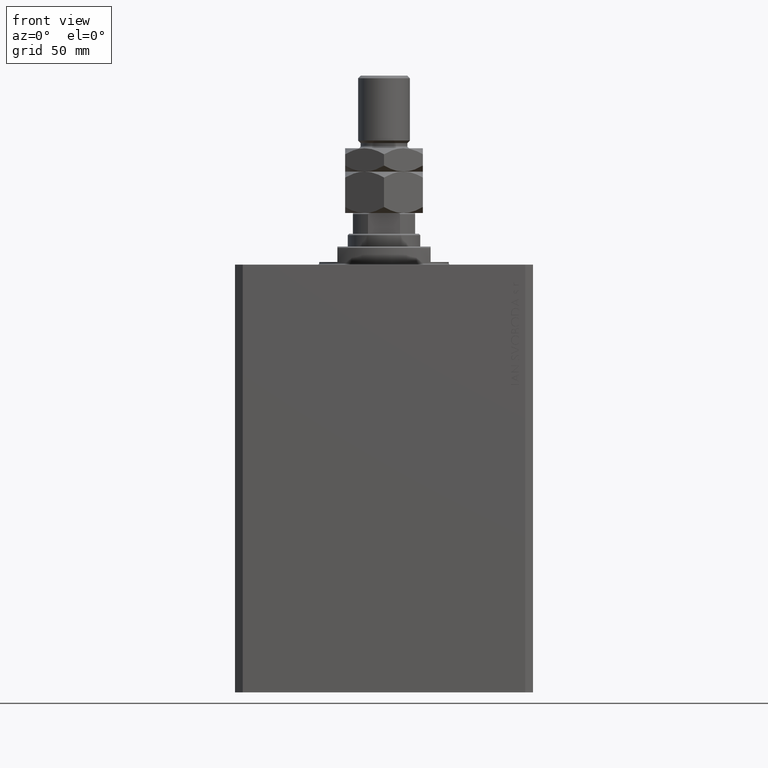
[diagram: clean part render]
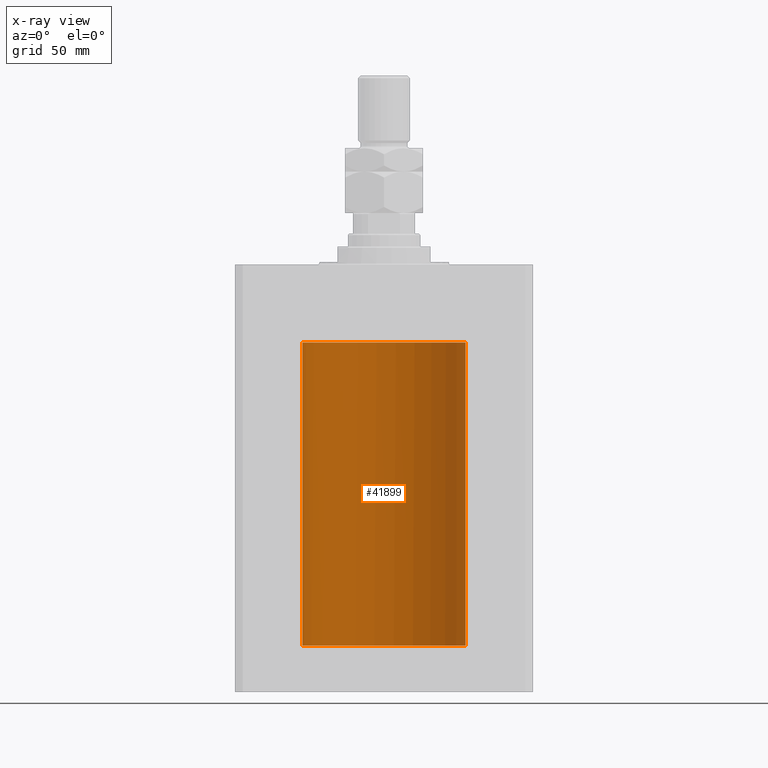
[diagram: x-ray — body ghosted, one internal face saturated and labeled with its STEP entity id]
A machine part, front view, then the same camera in x-ray: the body is ghosted and one INTERNAL B-rep face — a face not visible from any outside direction — is saturated and labeled: STEP entity #41899.
In plain terms, the highlighted cylindrical surface (partial cylindrical patch) has radius 31.5 mm, axis along (0, 0, 1).
Its self-contained STEP definition (entity closure, byte-faithful):
#1150 = VERTEX_POINT ( 'NONE', #13992 ) ;
#2262 = CIRCLE ( 'NONE', #33038, 31.50000000000000000 ) ;
#2282 = CARTESIAN_POINT ( 'NONE',  ( -31.49006417643538569, 0.8041893641746242771, -30.83852447520479956 ) ) ;
#2848 = CARTESIAN_POINT ( 'NONE',  ( 31.50000000000000000, -8.369814204394935255E-24, -134.0000000000000000 ) ) ;
#3234 = VERTEX_POINT ( 'NONE', #27598 ) ;
#3560 = DIRECTION ( 'NONE',  ( 1.000000000000000000, 0.000000000000000000, 0.000000000000000000 ) ) ;
#3732 = AXIS2_PLACEMENT_3D ( 'NONE', #41002, #15313, #7172 ) ;
#3853 = DIRECTION ( 'NONE',  ( -0.000000000000000000, -0.000000000000000000, 1.000000000000000000 ) ) ;
#4620 = CARTESIAN_POINT ( 'NONE',  ( 31.43989559156923264, 1.947546710638696110, -136.5243738522823378 ) ) ;
#5175 = CARTESIAN_POINT ( 'NONE',  ( 31.45226167581968113, 1.735077252816690230, -134.9967648169954657 ) ) ;
#5374 = DIRECTION ( 'NONE',  ( -0.000000000000000000, -0.000000000000000000, 1.000000000000000000 ) ) ;
#6868 = CIRCLE ( 'NONE', #3732, 31.50000000000000000 ) ;
#6970 = CARTESIAN_POINT ( 'NONE',  ( -31.50000000000000000, 0.1657740143102494623, -31.00000000000000711 ) ) ;
#7172 = DIRECTION ( 'NONE',  ( 1.000000000000000000, 0.000000000000000000, 0.000000000000000000 ) ) ;
#7215 = CARTESIAN_POINT ( 'NONE',  ( -31.49869211956624682, 0.3285775292346077570, -30.97970213844783416 ) ) ;
#7261 = DIRECTION ( 'NONE',  ( -0.000000000000000000, -0.000000000000000000, 1.000000000000000000 ) ) ;
#7964 = ORIENTED_EDGE ( 'NONE', *, *, #15089, .T. ) ;
#8482 = VERTEX_POINT ( 'NONE', #23171 ) ;
#9104 = CARTESIAN_POINT ( 'NONE',  ( 31.46404119587053927, 1.507594711990238201, -134.6791728524376310 ) ) ;
#9343 = CARTESIAN_POINT ( 'NONE',  ( 31.43644381923627051, 2.000000000000389910, -136.0000000000000000 ) ) ;
#9693 = CARTESIAN_POINT ( 'NONE',  ( -31.46581137650060356, 1.472225318046969322, -30.36367113479343161 ) ) ;
#9721 = CARTESIAN_POINT ( 'NONE',  ( -31.50000000000000000, 3.857542963677526976E-15, -30.99999999999999645 ) ) ;
#10507 = CARTESIAN_POINT ( 'NONE',  ( 31.47243113015943550, 1.320912165297383201, -134.4924797776056948 ) ) ;
#10820 = ORIENTED_EDGE ( 'NONE', *, *, #21424, .T. ) ;
#12004 = AXIS2_PLACEMENT_3D ( 'NONE', #25774, #7261, #3560 ) ;
#12571 = CARTESIAN_POINT ( 'NONE',  ( 31.50000000000000711, 0.1305169792915967519, -133.9999999999999432 ) ) ;
#12600 = VERTEX_POINT ( 'NONE', #41295 ) ;
#13992 = CARTESIAN_POINT ( 'NONE',  ( 31.50000000000000000, 0.000000000000000000, -30.10000000000000142 ) ) ;
#14514 = CARTESIAN_POINT ( 'NONE',  ( 31.48773468680478160, 0.8872681233992232297, -137.7972062396702313 ) ) ;
#15089 = EDGE_CURVE ( 'NONE', #3234, #12600, #17319, .T. ) ;
#15198 = ORIENTED_EDGE ( 'NONE', *, *, #32299, .T. ) ;
#15227 = ORIENTED_EDGE ( 'NONE', *, *, #20168, .F. ) ;
#15313 = DIRECTION ( 'NONE',  ( 0.000000000000000000, 0.000000000000000000, 1.000000000000000000 ) ) ;
#15709 = DIRECTION ( 'NONE',  ( 0.000000000000000000, 0.000000000000000000, 1.000000000000000000 ) ) ;
#15721 = CARTESIAN_POINT ( 'NONE',  ( 31.45161214644910075, 1.748160858796773631, -137.0059024499661291 ) ) ;
#16419 = VECTOR ( 'NONE', #5374, 1000.000000000000000 ) ;
#17084 = VECTOR ( 'NONE', #17234, 1000.000000000000000 ) ;
#17104 = CARTESIAN_POINT ( 'NONE',  ( -31.46054086632929625, 1.578847945691098875, -30.23891272917829909 ) ) ;
#17234 = DIRECTION ( 'NONE',  ( -0.000000000000000000, -0.000000000000000000, 1.000000000000000000 ) ) ;
#17319 = B_SPLINE_CURVE_WITH_KNOTS ( 'NONE', 3,
 ( #21919, #36972, #18204, #33265, #48334, #14514, #44629, #37951, #38442, #37469, #15721, #4620, #41649, #45840 ),
 .UNSPECIFIED., .F., .F.,
 ( 4, 2, 2, 2, 2, 2, 4 ),
 ( 5.096331421419789159E-18, 0.0003909946087814292703, 0.0007819892175628534448, 0.001172983826344277999, 0.001563978435125702553, 0.002345967652688551661, 0.003127956870251400769 ),
 .UNSPECIFIED. ) ;
#18204 = CARTESIAN_POINT ( 'NONE',  ( 31.49916827061299784, 0.2622045237009093532, -137.9870193222189130 ) ) ;
#18210 = CARTESIAN_POINT ( 'NONE',  ( -31.50000000000000000, 3.857637417314162689E-15, -147.1000000000000227 ) ) ;
#19585 = VECTOR ( 'NONE', #3853, 1000.000000000000000 ) ;
#19991 = CARTESIAN_POINT ( 'NONE',  ( 31.44280827872263018, 1.897980201673368450, -135.3559202626804563 ) ) ;
#20168 = EDGE_CURVE ( 'NONE', #48243, #8482, #6868, .T. ) ;
#20468 = CARTESIAN_POINT ( 'NONE',  ( 31.45991621267056004, 1.590260824275577356, -134.7801457396745093 ) ) ;
#20712 = CARTESIAN_POINT ( 'NONE',  ( 31.47656038302703507, 1.219789706799898843, -134.4096921557544988 ) ) ;
#20923 = ORIENTED_EDGE ( 'NONE', *, *, #25114, .F. ) ;
#21424 = EDGE_CURVE ( 'NONE', #37097, #31746, #26448, .T. ) ;
#21919 = CARTESIAN_POINT ( 'NONE',  ( 31.50000000000000000, -5.244345426788806144E-15, -138.0000000000000000 ) ) ;
#22037 = CARTESIAN_POINT ( 'NONE',  ( -31.50000000000000000, 3.857542963677526976E-15, -30.99999999999999645 ) ) ;
#23171 = CARTESIAN_POINT ( 'NONE',  ( -31.50000000000000000, 3.857637417314162689E-15, -147.1000000000000227 ) ) ;
#23935 = CARTESIAN_POINT ( 'NONE',  ( 31.49916210907646175, 0.2630769646869162703, -134.0130766648357508 ) ) ;
#24407 = CARTESIAN_POINT ( 'NONE',  ( 31.50000000000000000, -8.369814204394935255E-24, -134.0000000000000000 ) ) ;
#24508 = CARTESIAN_POINT ( 'NONE',  ( -31.45568311132346295, 1.670329308849017202, -30.10000000000000142 ) ) ;
#24887 = LINE ( 'NONE', #18210, #17084 ) ;
#25114 = EDGE_CURVE ( 'NONE', #8482, #31746, #24887, .T. ) ;
#25521 = VERTEX_POINT ( 'NONE', #2848 ) ;
#25569 = CARTESIAN_POINT ( 'NONE',  ( 31.48776132734998967, 0.8863252928784803863, -134.2023288708493283 ) ) ;
#25774 = CARTESIAN_POINT ( 'NONE',  ( 0.000000000000000000, 0.000000000000000000, -147.1000000000000227 ) ) ;
#25822 = B_SPLINE_CURVE_WITH_KNOTS ( 'NONE', 3,
 ( #9343, #40633, #42934, #35270, #19991, #46634, #5175, #20468, #9104, #10507, #20712, #29022, #25569, #36428, #35037, #23935, #12571, #24407 ),
 .UNSPECIFIED., .F., .F.,
 ( 4, 2, 2, 2, 2, 2, 2, 2, 4 ),
 ( 0.003127956870251400769, 0.003518772842989208692, 0.003909588815727015748, 0.004300404788464823672, 0.004691220761202631595, 0.005082036733940439518, 0.005472852706678247442, 0.005863668679416054498, 0.006254484652153862421 ),
 .UNSPECIFIED. ) ;
#26196 = EDGE_LOOP ( 'NONE', ( #20923, #15227, #44395, #7964, #26998, #15198, #36388, #10820 ) ) ;
#26321 = LINE ( 'NONE', #34688, #19585 ) ;
#26448 = B_SPLINE_CURVE_WITH_KNOTS ( 'NONE', 3,
 ( #24508, #17104, #9693, #39823, #36109, #2282, #29438, #7215, #6970, #22037 ),
 .UNSPECIFIED., .F., .F.,
 ( 4, 2, 2, 2, 4 ),
 ( 0.000000000000000000, 0.0004921177670202515984, 0.0009842355340405031967, 0.001476353301060754795, 0.001968471068081006393 ),
 .UNSPECIFIED. ) ;
#26998 = ORIENTED_EDGE ( 'NONE', *, *, #40461, .T. ) ;
#27598 = CARTESIAN_POINT ( 'NONE',  ( 31.50000000000000000, -5.244345426788806144E-15, -138.0000000000000000 ) ) ;
#28073 = EDGE_CURVE ( 'NONE', #48243, #3234, #43872, .T. ) ;
#29022 = CARTESIAN_POINT ( 'NONE',  ( 31.48420706794360058, 1.003217712170305864, -134.2649149328429132 ) ) ;
#29438 = CARTESIAN_POINT ( 'NONE',  ( -31.49373304996191791, 0.6483417414291828829, -30.89916737967284988 ) ) ;
#29963 = CYLINDRICAL_SURFACE ( 'NONE', #12004, 31.50000000000000000 ) ;
#31746 = VERTEX_POINT ( 'NONE', #9721 ) ;
#32299 = EDGE_CURVE ( 'NONE', #25521, #1150, #26321, .T. ) ;
#33038 = AXIS2_PLACEMENT_3D ( 'NONE', #42608, #15709, #42368 ) ;
#33265 = CARTESIAN_POINT ( 'NONE',  ( 31.49600115550921231, 0.5179422407981826293, -137.9361644646872378 ) ) ;
#34028 = CARTESIAN_POINT ( 'NONE',  ( 31.50000000000000000, 0.000000000000000000, -147.1000000000000227 ) ) ;
#34261 = EDGE_CURVE ( 'NONE', #1150, #37097, #2262, .T. ) ;
#34688 = CARTESIAN_POINT ( 'NONE',  ( 31.50000000000000000, 0.000000000000000000, -147.1000000000000227 ) ) ;
#35037 = CARTESIAN_POINT ( 'NONE',  ( 31.49597888575898708, 0.5193621964009151881, -134.0641961002934295 ) ) ;
#35270 = CARTESIAN_POINT ( 'NONE',  ( 31.44047330683569186, 1.935793094480593224, -135.4805747813048526 ) ) ;
#36109 = CARTESIAN_POINT ( 'NONE',  ( -31.48136522371477852, 1.092934591159441693, -30.68296962504550507 ) ) ;
#36388 = ORIENTED_EDGE ( 'NONE', *, *, #34261, .T. ) ;
#36428 = CARTESIAN_POINT ( 'NONE',  ( 31.49364883223205425, 0.6440257487116654023, -134.1019945078124351 ) ) ;
#36972 = CARTESIAN_POINT ( 'NONE',  ( 31.50000000000000711, 0.1322106156816646172, -138.0000000000000568 ) ) ;
#37097 = VERTEX_POINT ( 'NONE', #43131 ) ;
#37469 = CARTESIAN_POINT ( 'NONE',  ( 31.45992223434330981, 1.599182806012582558, -137.2291100714819265 ) ) ;
#37951 = CARTESIAN_POINT ( 'NONE',  ( 31.47656968928225751, 1.219587704424718533, -137.5905023401450933 ) ) ;
#38442 = CARTESIAN_POINT ( 'NONE',  ( 31.47236118406704364, 1.322499398534440429, -137.5059945699081823 ) ) ;
#39197 = CARTESIAN_POINT ( 'NONE',  ( 31.50000000000000000, 0.000000000000000000, -147.1000000000000227 ) ) ;
#39823 = CARTESIAN_POINT ( 'NONE',  ( -31.47622270810187928, 1.229689797707025578, -30.58584657277510388 ) ) ;
#40461 = EDGE_CURVE ( 'NONE', #12600, #25521, #25822, .T. ) ;
#40633 = CARTESIAN_POINT ( 'NONE',  ( 31.43644381923627051, 2.000000000000391687, -135.8695436863447412 ) ) ;
#41002 = CARTESIAN_POINT ( 'NONE',  ( 0.000000000000000000, 0.000000000000000000, -147.1000000000000227 ) ) ;
#41295 = CARTESIAN_POINT ( 'NONE',  ( 31.43644381923627051, 2.000000000000389910, -136.0000000000000000 ) ) ;
#41649 = CARTESIAN_POINT ( 'NONE',  ( 31.43644381923627762, 2.000000000000387246, -136.2610318865086185 ) ) ;
#41899 = ADVANCED_FACE ( 'NONE', ( #44786 ), #29963, .F. ) ;
#42368 = DIRECTION ( 'NONE',  ( 1.000000000000000000, 0.000000000000000000, 0.000000000000000000 ) ) ;
#42608 = CARTESIAN_POINT ( 'NONE',  ( 0.000000000000000000, 0.000000000000000000, -30.10000000000000142 ) ) ;
#42934 = CARTESIAN_POINT ( 'NONE',  ( 31.43728213781475489, 1.986944500966170146, -135.7370380017273135 ) ) ;
#43131 = CARTESIAN_POINT ( 'NONE',  ( -31.45568311132346295, 1.670329308849017202, -30.10000000000000142 ) ) ;
#43872 = LINE ( 'NONE', #39197, #16419 ) ;
#44395 = ORIENTED_EDGE ( 'NONE', *, *, #28073, .T. ) ;
#44629 = CARTESIAN_POINT ( 'NONE',  ( 31.48424227690099642, 1.002158581476550347, -137.7357332860677843 ) ) ;
#44786 = FACE_OUTER_BOUND ( 'NONE', #26196, .T. ) ;
#45840 = CARTESIAN_POINT ( 'NONE',  ( 31.43644381923627051, 2.000000000000389910, -136.0000000000000000 ) ) ;
#46634 = CARTESIAN_POINT ( 'NONE',  ( 31.44869941755756315, 1.797728078038221655, -135.1138051504310056 ) ) ;
#48243 = VERTEX_POINT ( 'NONE', #34028 ) ;
#48334 = CARTESIAN_POINT ( 'NONE',  ( 31.49362851683618914, 0.6450141649083286355, -137.8976700761137124 ) ) ;